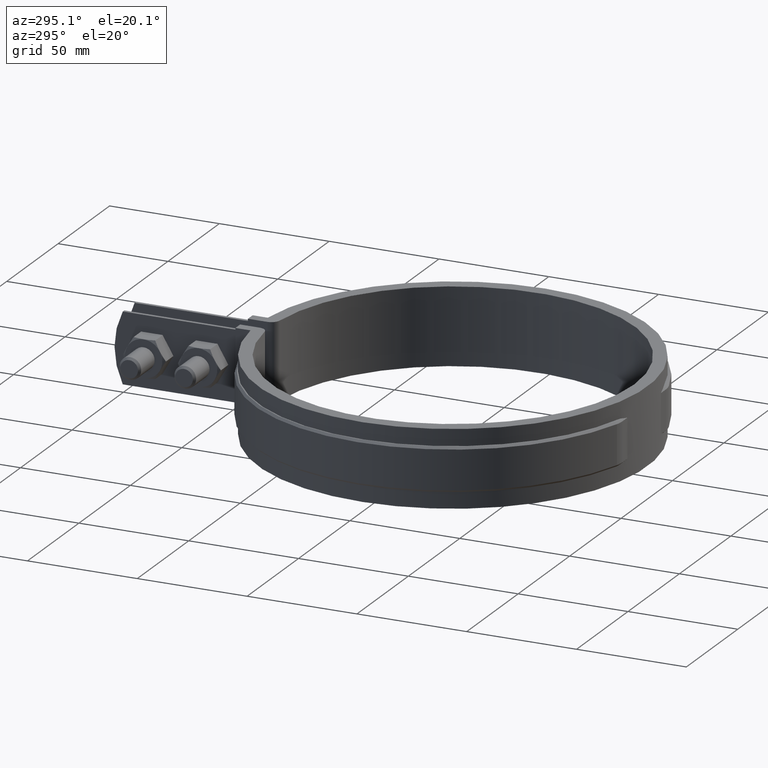
[diagram: clean part render]
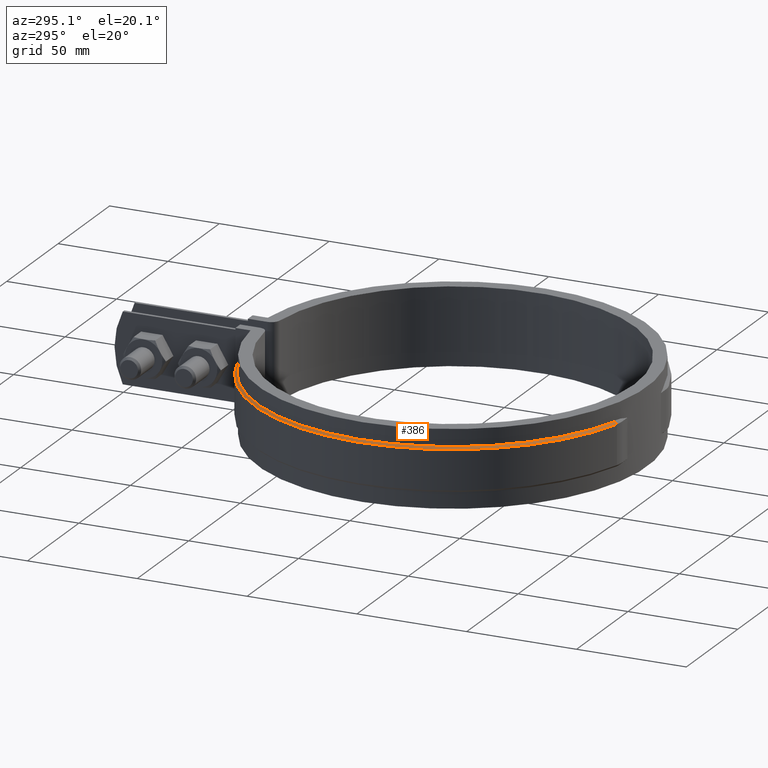
[diagram: same view with one face highlighted and labeled with its STEP entity id]
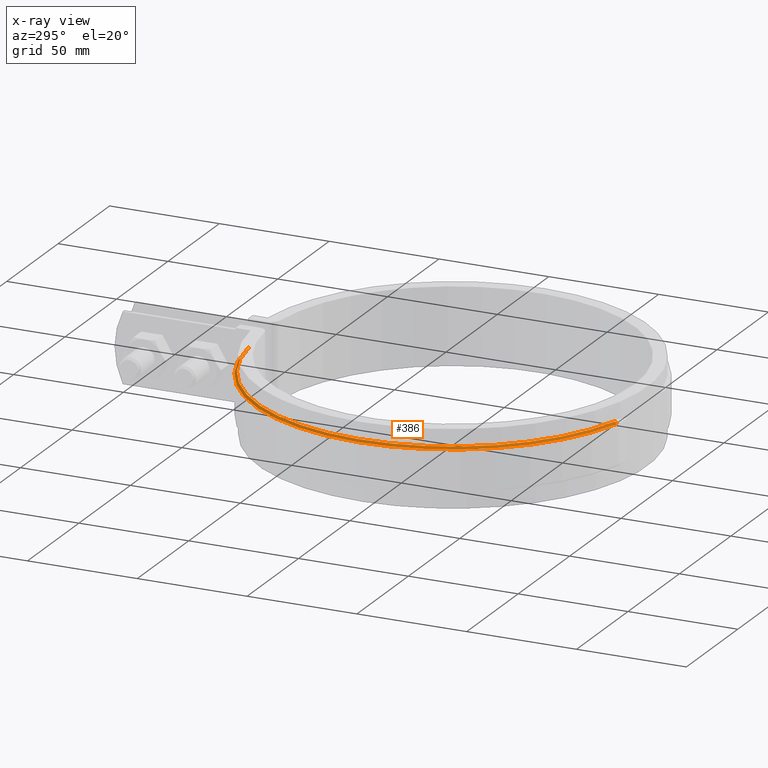
[diagram: x-ray of the same camera — body ghosted, the highlighted face saturated]
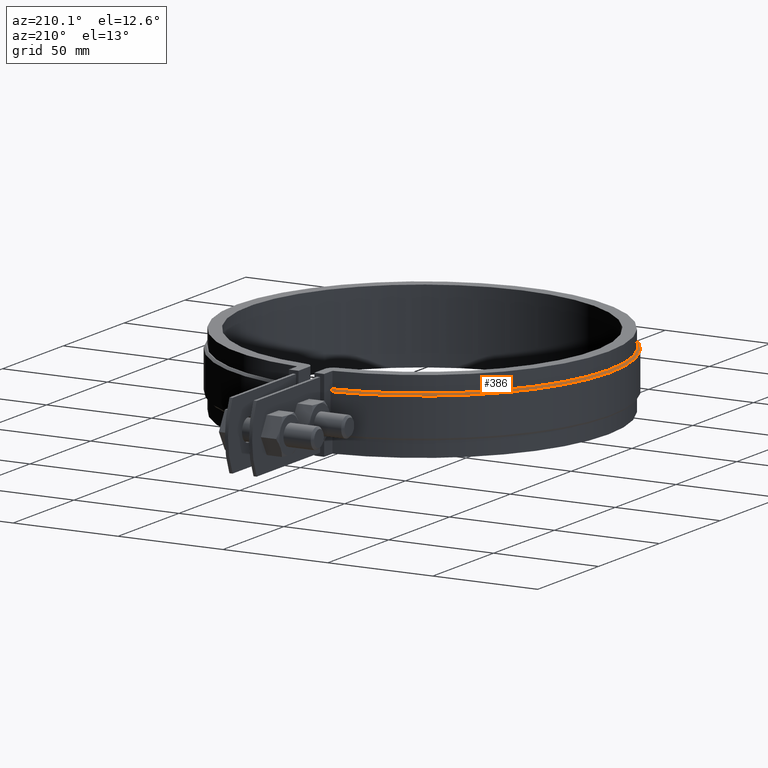
[diagram: same view with one face highlighted and labeled with its STEP entity id]
A machine part, auxiliary view. The second image highlights one B-rep face of the part: STEP entity #386.
The next image is the same camera in x-ray: the body ghosted, the highlighted face saturated — about 0% of this face is hidden behind the body in this view.
A second angle (auxiliary view) of the same face is appended — the face is thin or edge-on in the first view.
In plain terms, the highlighted conical surface has half-angle 45 deg.
Its self-contained STEP definition (entity closure, byte-faithful):
#386 = ADVANCED_FACE( '', ( #628 ), #629, .T. );
#628 = FACE_OUTER_BOUND( '', #1714, .T. );
#629 = CONICAL_SURFACE( '', #1715, 90.1000000000000, 0.785398163397450 );
#1714 = EDGE_LOOP( '', ( #4002, #4003, #4004, #4005 ) );
#1715 = AXIS2_PLACEMENT_3D( '', #4006, #4007, #4008 );
#4002 = ORIENTED_EDGE( '', *, *, #4792, .F. );
#4003 = ORIENTED_EDGE( '', *, *, #4838, .F. );
#4004 = ORIENTED_EDGE( '', *, *, #4839, .F. );
#4005 = ORIENTED_EDGE( '', *, *, #4830, .F. );
#4006 = CARTESIAN_POINT( '', ( 3.46944695195361E-015, 2.77555756156289E-014, -7.00000000000000 ) );
#4007 = DIRECTION( '', ( 0.000000000000000, 0.000000000000000, -1.00000000000000 ) );
#4008 = DIRECTION( '', ( -1.00000000000000, 0.000000000000000, 0.000000000000000 ) );
#4792 = EDGE_CURVE( '', #5308, #5310, #5311, .T. );
#4830 = EDGE_CURVE( '', #5310, #5370, #5374, .F. );
#4838 = EDGE_CURVE( '', #5341, #5308, #5384, .T. );
#4839 = EDGE_CURVE( '', #5370, #5341, #5385, .T. );
#5308 = VERTEX_POINT( '', #8047 );
#5310 = VERTEX_POINT( '', #8050 );
#5311 = B_SPLINE_CURVE_WITH_KNOTS( '', 3, ( #8051, #8052, #8053, #8054 ), .UNSPECIFIED., .F., .F., ( 4, 4 ), ( 3.46944695195361E-018, 0.00141734515066831 ), .UNSPECIFIED. );
#5341 = VERTEX_POINT( '', #8091 );
#5370 = VERTEX_POINT( '', #8128 );
#5374 = CIRCLE( '', #8133, 89.1000000000000 );
#5384 = CIRCLE( '', #8148, 90.1000000000000 );
#5385 = LINE( '', #8149, #8150 );
#8047 = CARTESIAN_POINT( '', ( -8.40000000000000, 89.7075805046597, -6.99999999999999 ) );
#8050 = CARTESIAN_POINT( '', ( -8.40000000000000, 88.7031566518351, -6.00000000000000 ) );
#8051 = CARTESIAN_POINT( '', ( -8.40000000000014, 89.7075805046597, -7.00000000000000 ) );
#8052 = CARTESIAN_POINT( '', ( -8.40000000000014, 89.3727807548670, -6.66665842943985 ) );
#8053 = CARTESIAN_POINT( '', ( -8.40000000000000, 89.0379728961723, -6.33332500304170 ) );
#8054 = CARTESIAN_POINT( '', ( -8.40000000000000, 88.7031566518351, -6.00000000000000 ) );
#8091 = CARTESIAN_POINT( '', ( -25.2115406837686, -86.5007989347536, -6.99999999999999 ) );
#8128 = CARTESIAN_POINT( '', ( -24.9317233620842, -85.5407456724367, -6.00000000000000 ) );
#8133 = AXIS2_PLACEMENT_3D( '', #8922, #8923, #8924 );
#8148 = AXIS2_PLACEMENT_3D( '', #8936, #8937, #8938 );
#8149 = CARTESIAN_POINT( '', ( -24.9317233620842, -85.5407456724367, -6.00000000000000 ) );
#8150 = VECTOR( '', #8939, 1000.00000000000 );
#8922 = CARTESIAN_POINT( '', ( 3.46944695195361E-015, 2.77555756156289E-014, -6.00000000000000 ) );
#8923 = DIRECTION( '', ( 0.000000000000000, 0.000000000000000, -1.00000000000000 ) );
#8924 = DIRECTION( '', ( -1.00000000000000, 0.000000000000000, 0.000000000000000 ) );
#8936 = CARTESIAN_POINT( '', ( 3.46944695195361E-015, 2.77555756156289E-014, -7.00000000000000 ) );
#8937 = DIRECTION( '', ( 0.000000000000000, 0.000000000000000, -1.00000000000000 ) );
#8938 = DIRECTION( '', ( -1.00000000000000, 0.000000000000000, 0.000000000000000 ) );
#8939 = DIRECTION( '', ( -0.197860725656531, -0.678860172084554, -0.707106781186548 ) );